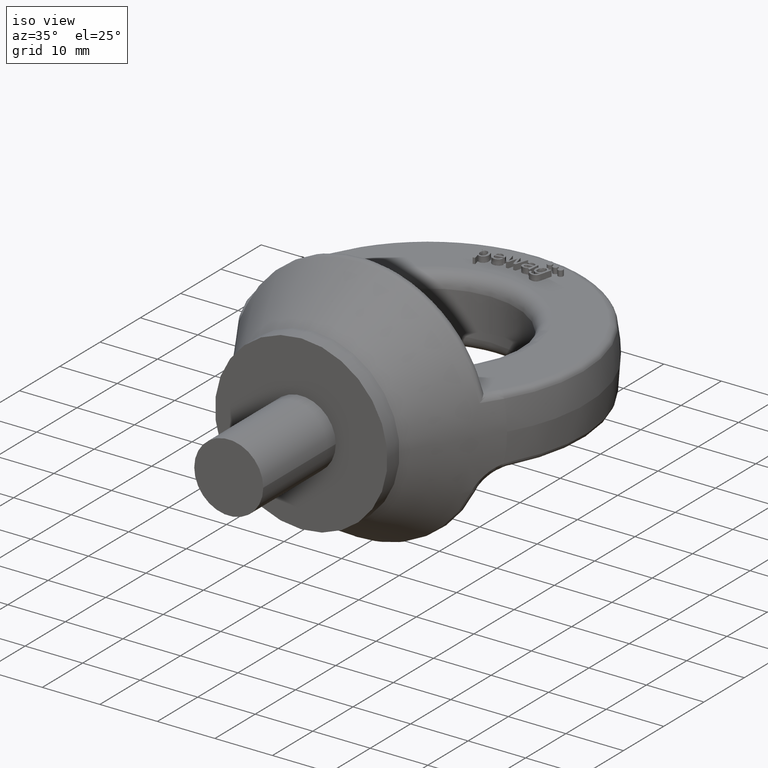
[diagram: clean part render]
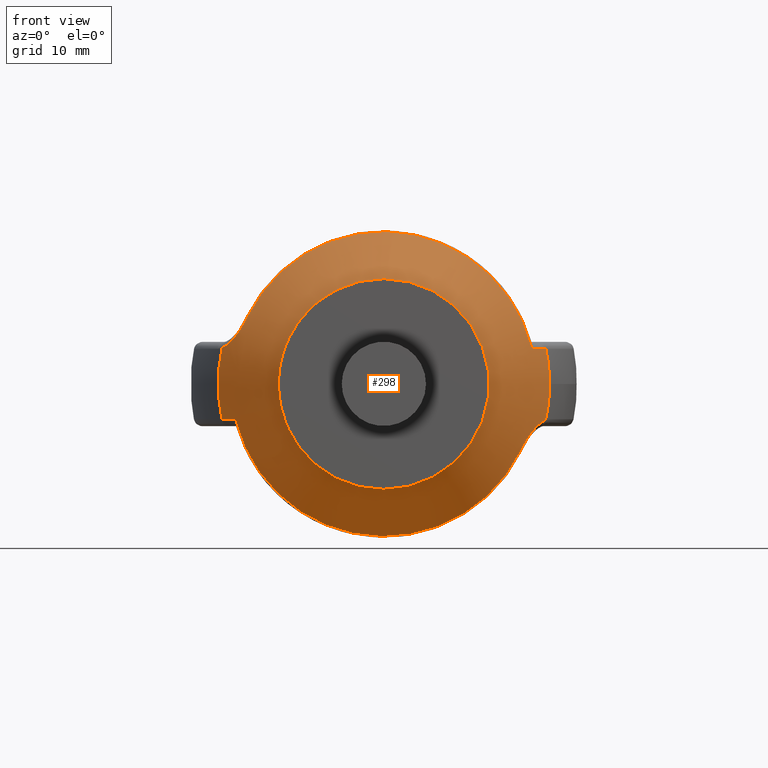
[diagram: tour spotlight — one face highlighted and labeled with its STEP entity id]
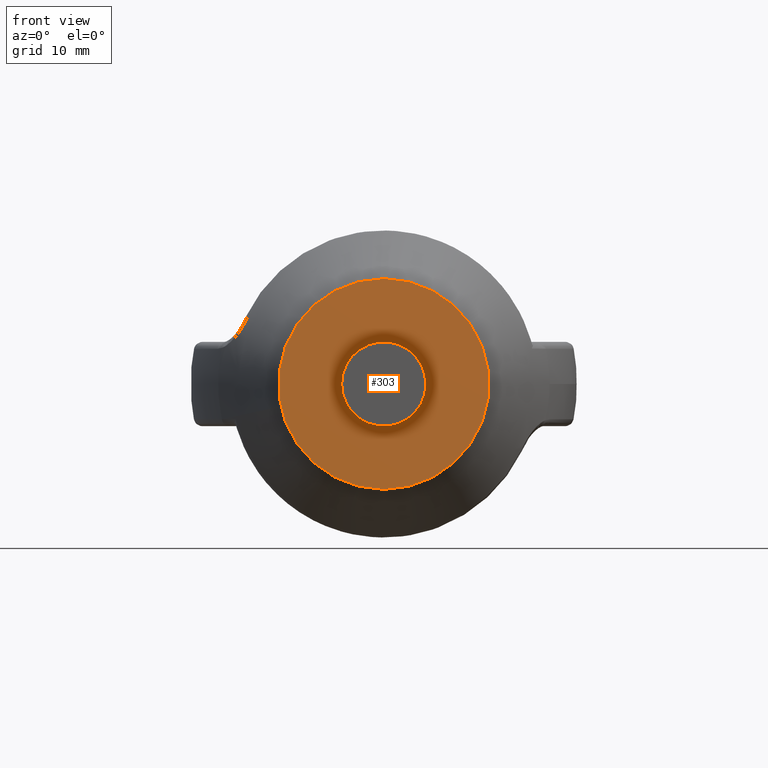
[diagram: tour spotlight — one face highlighted and labeled with its STEP entity id]
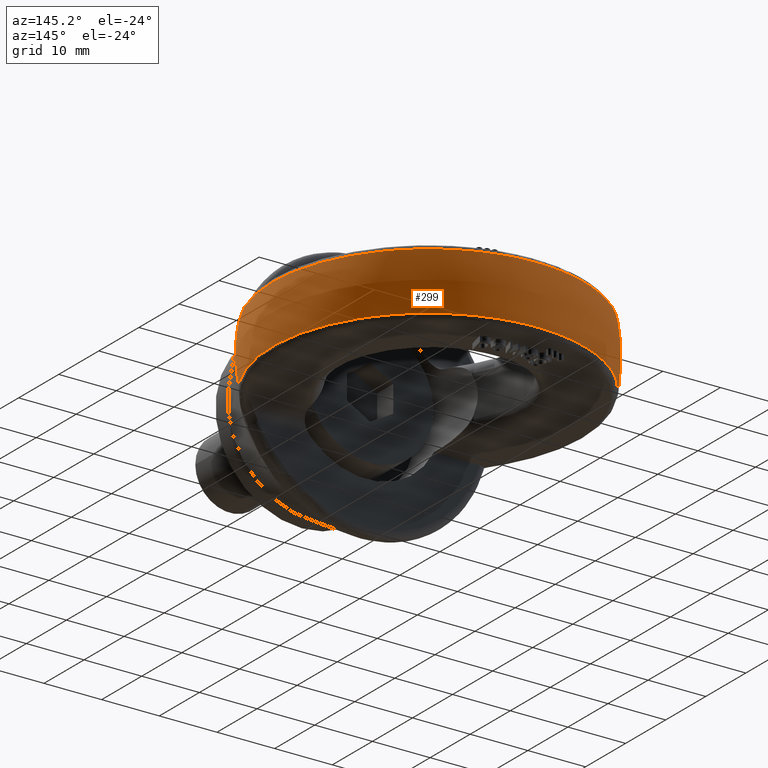
[diagram: tour spotlight — one face highlighted and labeled with its STEP entity id]
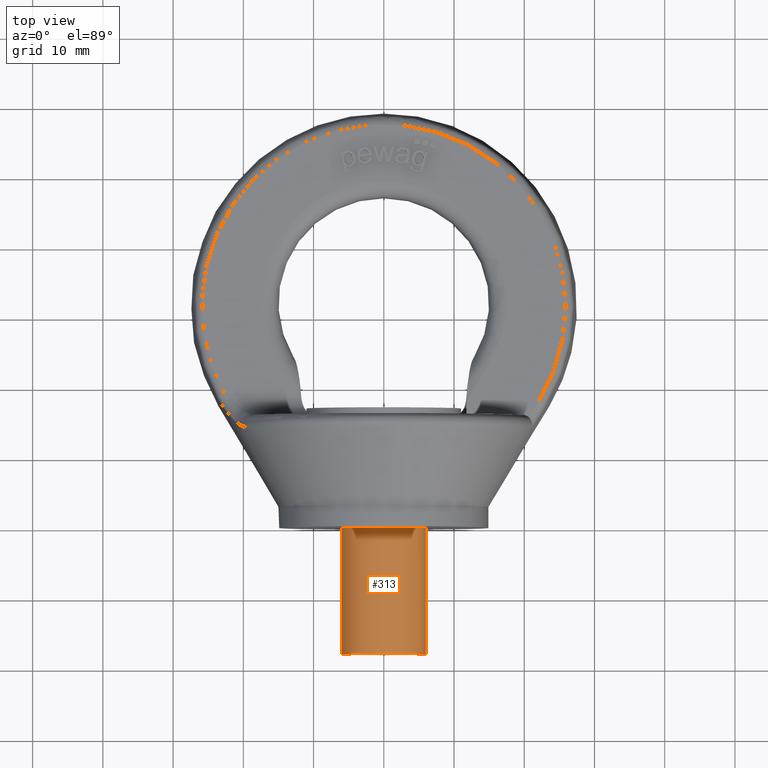
[diagram: tour spotlight — one face highlighted and labeled with its STEP entity id]
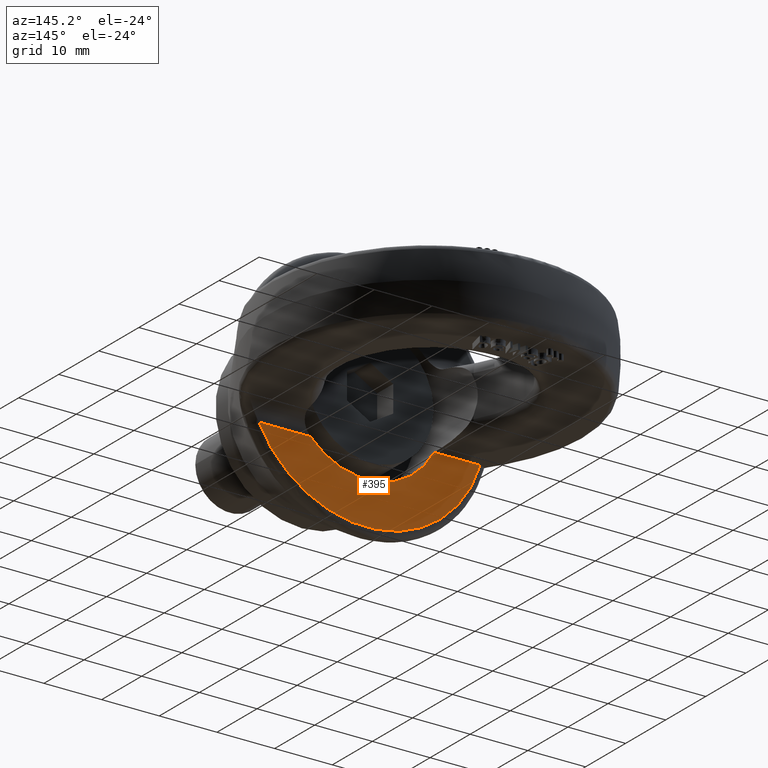
[diagram: tour spotlight — one face highlighted and labeled with its STEP entity id]
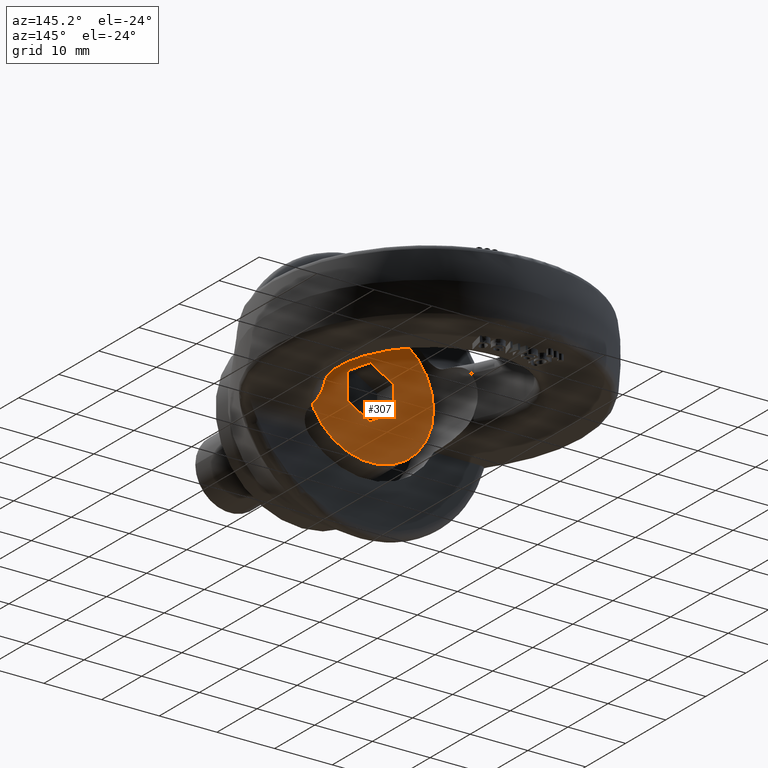
[diagram: tour spotlight — one face highlighted and labeled with its STEP entity id]
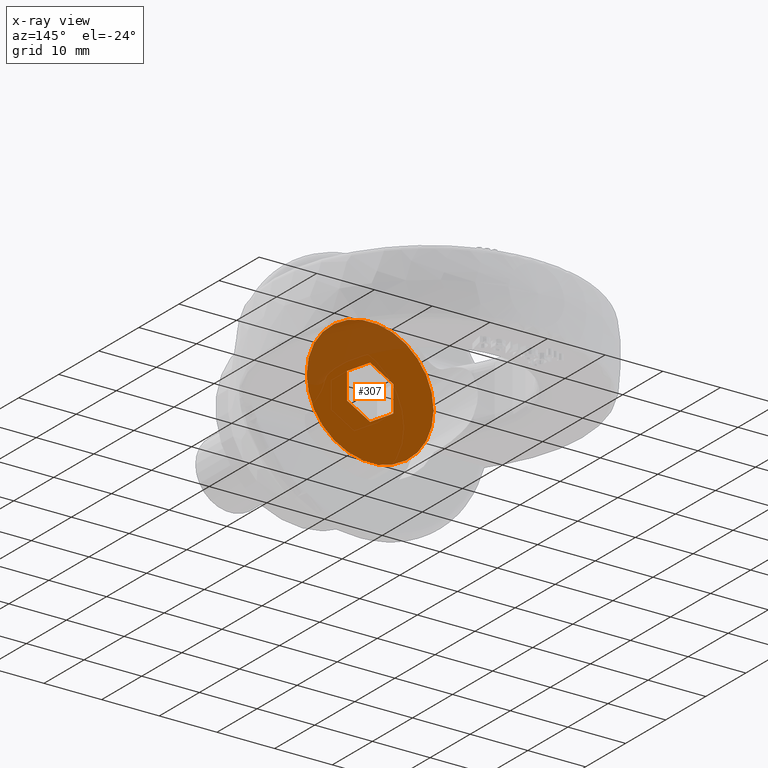
[diagram: x-ray of the same camera — body ghosted, this tour face saturated]
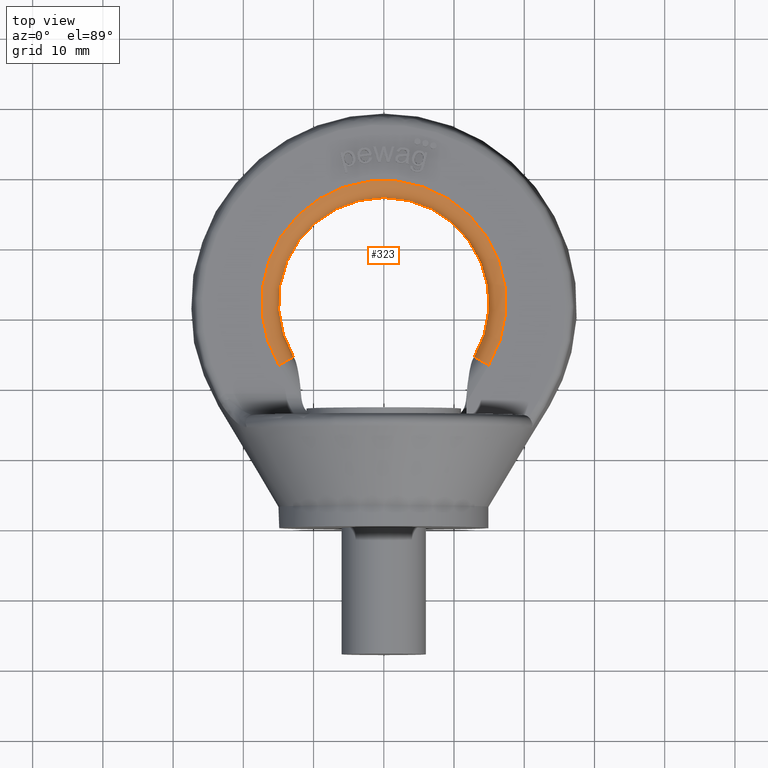
[diagram: tour spotlight — one face highlighted and labeled with its STEP entity id]
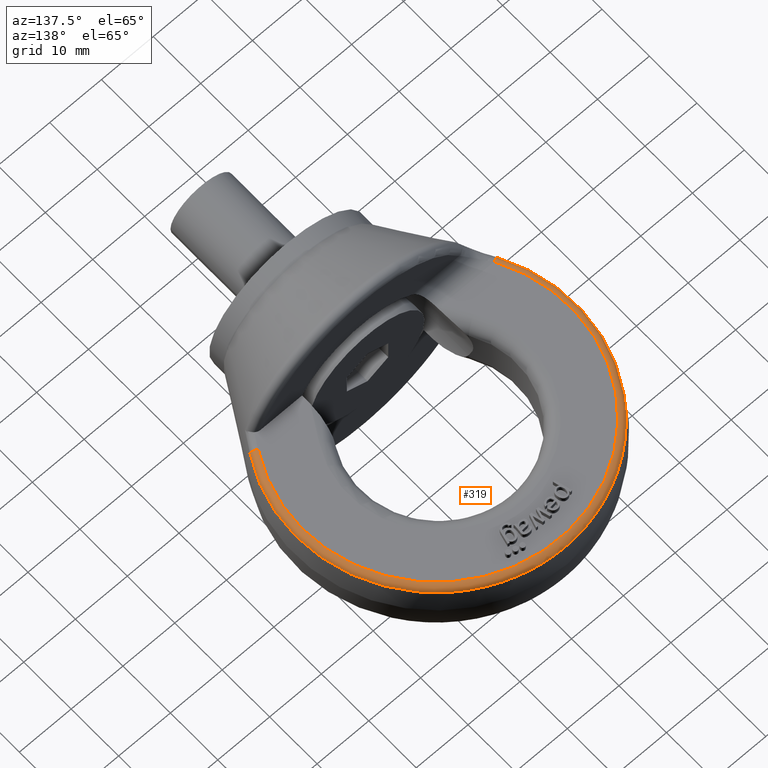
[diagram: tour spotlight — one face highlighted and labeled with its STEP entity id]
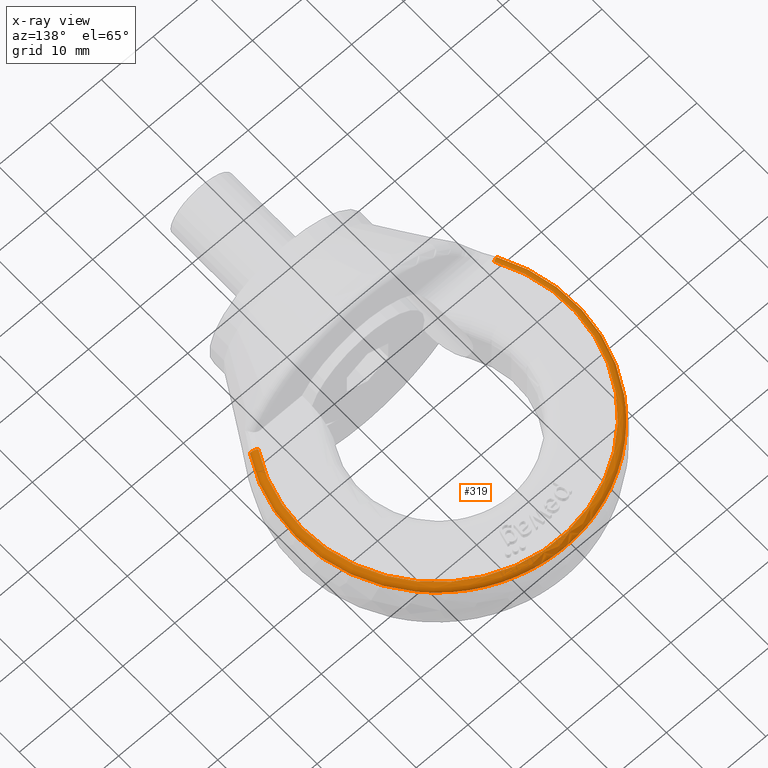
[diagram: x-ray of the same camera — body ghosted, this tour face saturated]
A machine part: a face-by-face anatomy tour. The part has 182 B-rep faces; the first image is the clean iso view, then the 8 largest visible faces are spotlighted one at a time (largest first), each with its STEP entity span.

Face 1 — front view, entity #298. In plain terms, the highlighted conical surface has half-angle 30.876 deg.
Definition (entity closure, byte-faithful):
#130=CONICAL_SURFACE('',#3210,13.2062141843784,30.8764104700905);
#298=ADVANCED_FACE('',(#628,#629),#130,.T.);
#577=CIRCLE('',#3205,23.6025973043248);
#578=CIRCLE('',#3206,21.6873378493402);
#579=CIRCLE('',#3207,23.6025973043248);
#580=CIRCLE('',#3208,21.6873378493402);
#581=CIRCLE('',#3209,15.0000000000001);
#628=FACE_BOUND('',#692,.T.);
#629=FACE_BOUND('',#693,.T.);
#692=EDGE_LOOP('',(#1406,#1407,#1408,#1409,#1410,#1411,#1412,#1413));
#693=EDGE_LOOP('',(#1414));
#1406=ORIENTED_EDGE('',*,*,#2572,.T.);
#1407=ORIENTED_EDGE('',*,*,#2573,.T.);
#1408=ORIENTED_EDGE('',*,*,#2574,.T.);
#1409=ORIENTED_EDGE('',*,*,#2575,.T.);
#1410=ORIENTED_EDGE('',*,*,#2576,.T.);
#1411=ORIENTED_EDGE('',*,*,#2577,.T.);
#1412=ORIENTED_EDGE('',*,*,#2578,.T.);
#1413=ORIENTED_EDGE('',*,*,#2579,.T.);
#1414=ORIENTED_EDGE('',*,*,#2580,.F.);
#2278=VERTEX_POINT('',#4269);
#2279=VERTEX_POINT('',#4270);
#2280=VERTEX_POINT('',#4278);
#2281=VERTEX_POINT('',#4280);
#2282=VERTEX_POINT('',#4285);
#2283=VERTEX_POINT('',#4287);
#2284=VERTEX_POINT('',#4295);
#2285=VERTEX_POINT('',#4297);
#2286=VERTEX_POINT('',#4303);
#2572=EDGE_CURVE('',#2278,#2279,#577,.T.);
#2573=EDGE_CURVE('',#2279,#2280,#2970,.T.);
#2574=EDGE_CURVE('',#2280,#2281,#578,.T.);
#2575=EDGE_CURVE('',#2281,#2282,#2971,.T.);
#2576=EDGE_CURVE('',#2282,#2283,#579,.T.);
#2577=EDGE_CURVE('',#2283,#2284,#2972,.T.);
#2578=EDGE_CURVE('',#2284,#2285,#580,.T.);
#2579=EDGE_CURVE('',#2285,#2278,#2973,.T.);
#2580=EDGE_CURVE('',#2286,#2286,#581,.T.);
#2970=B_SPLINE_CURVE_WITH_KNOTS('',3,(#4271,#4272,#4273,#4274,#4275,#4276,
#4277),.UNSPECIFIED.,.F.,.F.,(4,3,4),(0.,0.638294120188344,1.),
 .UNSPECIFIED.);
#2971=B_SPLINE_CURVE_WITH_KNOTS('',3,(#4281,#4282,#4283,#4284),
 .UNSPECIFIED.,.F.,.F.,(4,4),(0.,1.),.UNSPECIFIED.);
#2972=B_SPLINE_CURVE_WITH_KNOTS('',3,(#4288,#4289,#4290,#4291,#4292,#4293,
#4294),.UNSPECIFIED.,.F.,.F.,(4,3,4),(0.,0.638294120188344,1.),
 .UNSPECIFIED.);
#2973=B_SPLINE_CURVE_WITH_KNOTS('',3,(#4298,#4299,#4300,#4301),
 .UNSPECIFIED.,.F.,.F.,(4,4),(0.,1.),.UNSPECIFIED.);
#3205=AXIS2_PLACEMENT_3D('',#4268,#3422,#3423);
#3206=AXIS2_PLACEMENT_3D('',#4279,#3424,#3425);
#3207=AXIS2_PLACEMENT_3D('',#4286,#3426,#3427);
#3208=AXIS2_PLACEMENT_3D('',#4296,#3428,#3429);
#3209=AXIS2_PLACEMENT_3D('',#4302,#3430,#3431);
#3210=AXIS2_PLACEMENT_3D('',#4304,#3432,#3433);
#3422=DIRECTION('',(-2.1593813703848E-15,-1.,0.));
#3423=DIRECTION('',(1.,-2.20491429855343E-15,0.));
#3424=DIRECTION('',(-4.38613491528481E-16,-1.,-1.02763225525862E-30));
#3425=DIRECTION('',(-1.,3.99939238284515E-16,-2.34291072916505E-15));
#3426=DIRECTION('',(-2.1593813703848E-15,-1.,0.));
#3427=DIRECTION('',(1.,-2.20491429855343E-15,0.));
#3428=DIRECTION('',(4.38613491528481E-16,-1.,0.));
#3429=DIRECTION('',(1.,3.99939238284515E-16,0.));
#3430=DIRECTION('',(0.,-1.,0.));
#3431=DIRECTION('',(0.,0.,1.));
#3432=DIRECTION('',(2.1593813703848E-15,1.,0.));
#3433=DIRECTION('',(-1.,2.13457327670053E-15,0.));
#4268=CARTESIAN_POINT('',(-8.98576202357118E-14,17.3873319145569,0.));
#4269=CARTESIAN_POINT('',(-23.0351195089713,17.387331914557,5.14449887914585));
#4270=CARTESIAN_POINT('',(-23.0627865620805,17.3873319145569,-5.01901140684417));
#4271=CARTESIAN_POINT('',(-23.0627865620805,17.3873319145569,-5.01901140684417));
#4272=CARTESIAN_POINT('',(-22.6446015726163,16.7053451017831,-5.02296788881762));
#4273=CARTESIAN_POINT('',(-22.2259777586906,16.0236282794082,-5.02713655361826));
#4274=CARTESIAN_POINT('',(-21.8068296173222,15.3422358362941,-5.03155537863398));
#4275=CARTESIAN_POINT('',(-21.5693084320603,14.9561071034107,-5.03405942064589));
#4276=CARTESIAN_POINT('',(-21.3316184619003,14.5700826448269,-5.03664393549583));
#4277=CARTESIAN_POINT('',(-21.0937409154711,14.1841744835443,-5.03931713453303));
#4278=CARTESIAN_POINT('',(-21.0937409154711,14.1841744835443,-5.03931713453303));
#4279=CARTESIAN_POINT('',(9.67744587186501E-14,14.1841744835443,2.26733917641065E-28));
#4280=CARTESIAN_POINT('',(19.5208176159981,14.1841744835444,-9.44871962724931));
#4281=CARTESIAN_POINT('',(19.520817615998,14.1841744835443,-9.44871962724929));
#4282=CARTESIAN_POINT('',(20.5128956588533,14.1841744835443,-7.39911128882818));
#4283=CARTESIAN_POINT('',(21.7953895553173,15.5398626792843,-5.62746283426921));
#4284=CARTESIAN_POINT('',(23.0351195089713,17.387331914557,-5.14449887914579));
#4285=CARTESIAN_POINT('',(23.0351195089713,17.387331914557,-5.1444988791458));
#4286=CARTESIAN_POINT('',(-8.98576202357118E-14,17.3873319145569,0.));
#4287=CARTESIAN_POINT('',(23.0627865620805,17.3873319145569,5.01901140684411));
#4288=CARTESIAN_POINT('',(23.0627865620805,17.3873319145569,5.01901140684411));
#4289=CARTESIAN_POINT('',(22.6446015726163,16.7053451017831,5.02296788881757));
#4290=CARTESIAN_POINT('',(22.2259777586906,16.0236282794082,5.02713655361821));
#4291=CARTESIAN_POINT('',(21.8068296173222,15.3422358362941,5.03155537863393));
#4292=CARTESIAN_POINT('',(21.5693084320603,14.9561071034107,5.03405942064584));
#4293=CARTESIAN_POINT('',(21.3316184619003,14.5700826448269,5.03664393549578));
#4294=CARTESIAN_POINT('',(21.0937409154711,14.1841744835443,5.03931713453298));
#4295=CARTESIAN_POINT('',(21.0937409154711,14.1841744835443,5.03931713453298));
#4296=CARTESIAN_POINT('',(-9.67744587186501E-14,14.1841744835443,0.));
#4297=CARTESIAN_POINT('',(-19.520817615998,14.1841744835444,9.44871962724936));
#4298=CARTESIAN_POINT('',(-19.520817615998,14.1841744835443,9.44871962724934));
#4299=CARTESIAN_POINT('',(-20.5128956588533,14.1841744835443,7.39911128882823));
#4300=CARTESIAN_POINT('',(-21.7953895553173,15.5398626792843,5.62746283426926));
#4301=CARTESIAN_POINT('',(-23.0351195089713,17.387331914557,5.14449887914585));
#4302=CARTESIAN_POINT('',(-1.27403500852703E-13,3.,2.58454824747247E-14));
#4303=CARTESIAN_POINT('',(-1.27403500852703E-13,3.,15.0000000000001));
#4304=CARTESIAN_POINT('',(-1.27403500852703E-13,2.77555756156289E-14,0.));

Face 2 — front view, entity #303. In plain terms, the highlighted planar face has unit normal (0, 1, 0).
Definition (entity closure, byte-faithful):
#303=ADVANCED_FACE('',(#632,#633),#481,.F.);
#481=PLANE('',#3222);
#586=CIRCLE('',#3219,15.);
#587=CIRCLE('',#3221,6.);
#632=FACE_BOUND('',#699,.T.);
#633=FACE_BOUND('',#700,.T.);
#699=EDGE_LOOP('',(#1434));
#700=EDGE_LOOP('',(#1435));
#1434=ORIENTED_EDGE('',*,*,#2594,.T.);
#1435=ORIENTED_EDGE('',*,*,#2595,.T.);
#2296=VERTEX_POINT('',#4347);
#2297=VERTEX_POINT('',#4350);
#2594=EDGE_CURVE('',#2296,#2296,#586,.T.);
#2595=EDGE_CURVE('',#2297,#2297,#587,.T.);
#3219=AXIS2_PLACEMENT_3D('',#4346,#3454,#3455);
#3221=AXIS2_PLACEMENT_3D('',#4349,#3458,#3459);
#3222=AXIS2_PLACEMENT_3D('',#4351,#3460,#3461);
#3454=DIRECTION('',(0.,-1.,0.));
#3455=DIRECTION('',(0.,0.,-1.));
#3458=DIRECTION('',(0.,1.,0.));
#3459=DIRECTION('',(1.,0.,6.12323399573677E-17));
#3460=DIRECTION('',(0.,1.,0.));
#3461=DIRECTION('',(0.,0.,1.));
#4346=CARTESIAN_POINT('',(0.,0.,0.));
#4347=CARTESIAN_POINT('',(0.,0.,-15.));
#4349=CARTESIAN_POINT('',(0.,0.,0.));
#4350=CARTESIAN_POINT('',(6.,0.,3.67394039744206E-16));
#4351=CARTESIAN_POINT('',(-15.,-2.16840434497101E-16,0.));

Face 3 — auxiliary view, entity #299. In plain terms, the highlighted spherical surface has radius 27.5 mm.
Definition (entity closure, byte-faithful):
#129=SPHERICAL_SURFACE('',#3213,27.5);
#133=FACE_OUTER_BOUND('',#694,.T.);
#299=ADVANCED_FACE('',(#133),#129,.T.);
#577=CIRCLE('',#3205,23.6025973043248);
#579=CIRCLE('',#3207,23.6025973043248);
#582=CIRCLE('',#3211,27.0381124433265);
#583=CIRCLE('',#3212,27.0381124433265);
#694=EDGE_LOOP('',(#1415,#1416,#1417,#1418,#1419,#1420));
#1415=ORIENTED_EDGE('',*,*,#2572,.F.);
#1416=ORIENTED_EDGE('',*,*,#2581,.T.);
#1417=ORIENTED_EDGE('',*,*,#2582,.T.);
#1418=ORIENTED_EDGE('',*,*,#2576,.F.);
#1419=ORIENTED_EDGE('',*,*,#2583,.T.);
#1420=ORIENTED_EDGE('',*,*,#2584,.T.);
#2278=VERTEX_POINT('',#4269);
#2279=VERTEX_POINT('',#4270);
#2282=VERTEX_POINT('',#4285);
#2283=VERTEX_POINT('',#4287);
#2287=VERTEX_POINT('',#4309);
#2288=VERTEX_POINT('',#4315);
#2572=EDGE_CURVE('',#2278,#2279,#577,.T.);
#2576=EDGE_CURVE('',#2282,#2283,#579,.T.);
#2581=EDGE_CURVE('',#2278,#2287,#2974,.T.);
#2582=EDGE_CURVE('',#2287,#2283,#582,.T.);
#2583=EDGE_CURVE('',#2282,#2288,#2975,.T.);
#2584=EDGE_CURVE('',#2288,#2279,#583,.T.);
#2974=B_SPLINE_CURVE_WITH_KNOTS('',3,(#4305,#4306,#4307,#4308),
 .UNSPECIFIED.,.F.,.F.,(4,4),(0.,1.),.UNSPECIFIED.);
#2975=B_SPLINE_CURVE_WITH_KNOTS('',3,(#4311,#4312,#4313,#4314),
 .UNSPECIFIED.,.F.,.F.,(4,4),(0.,1.),.UNSPECIFIED.);
#3205=AXIS2_PLACEMENT_3D('',#4268,#3422,#3423);
#3207=AXIS2_PLACEMENT_3D('',#4286,#3426,#3427);
#3211=AXIS2_PLACEMENT_3D('',#4310,#3434,#3435);
#3212=AXIS2_PLACEMENT_3D('',#4316,#3436,#3437);
#3213=AXIS2_PLACEMENT_3D('',#4317,#3438,#3439);
#3422=DIRECTION('',(-2.1593813703848E-15,-1.,0.));
#3423=DIRECTION('',(1.,-2.20491429855343E-15,0.));
#3426=DIRECTION('',(-2.1593813703848E-15,-1.,0.));
#3427=DIRECTION('',(1.,-2.20491429855343E-15,0.));
#3434=DIRECTION('',(0.,-1.14557210677714E-16,-1.));
#3435=DIRECTION('',(0.,1.,-1.28316906708106E-16));
#3436=DIRECTION('',(-2.34291072916505E-15,-1.14557210677714E-16,1.));
#3437=DIRECTION('',(-2.84920768552035E-31,1.,1.28316906708106E-16));
#3438=DIRECTION('',(-2.09814903042743E-15,-1.,0.));
#3439=DIRECTION('',(1.,-2.27091073218782E-15,0.));
#4268=CARTESIAN_POINT('',(-8.98576202357118E-14,17.3873319145569,0.));
#4269=CARTESIAN_POINT('',(-23.0351195089713,17.387331914557,5.14449887914585));
#4270=CARTESIAN_POINT('',(-23.0627865620805,17.3873319145569,-5.01901140684417));
#4285=CARTESIAN_POINT('',(23.0351195089713,17.387331914557,-5.1444988791458));
#4286=CARTESIAN_POINT('',(-8.98576202357118E-14,17.3873319145569,0.));
#4287=CARTESIAN_POINT('',(23.0627865620805,17.3873319145569,5.01901140684411));
#4305=CARTESIAN_POINT('',(-23.0351195089713,17.387331914557,5.14449887914585));
#4306=CARTESIAN_POINT('',(-23.2574701833435,17.7205790611289,5.06307831770471));
#4307=CARTESIAN_POINT('',(-23.4714681164741,18.0717897042746,5.01901140684411));
#4308=CARTESIAN_POINT('',(-23.6690869940882,18.4296577946768,5.01901140684411));
#4309=CARTESIAN_POINT('',(-23.6690869940882,18.4296577946768,5.01901140684411));
#4310=CARTESIAN_POINT('',(0.,31.5,5.01901140684411));
#4311=CARTESIAN_POINT('',(23.0351195089713,17.387331914557,-5.1444988791458));
#4312=CARTESIAN_POINT('',(23.2574701833435,17.7205790611289,-5.06307831770465));
#4313=CARTESIAN_POINT('',(23.4714681164741,18.0717897042746,-5.01901140684406));
#4314=CARTESIAN_POINT('',(23.6690869940882,18.4296577946768,-5.01901140684406));
#4315=CARTESIAN_POINT('',(23.6690869940882,18.4296577946768,-5.01901140684406));
#4316=CARTESIAN_POINT('',(1.17590956748968E-14,31.5,-5.01901140684411));
#4317=CARTESIAN_POINT('',(0.,31.5,0.));

Face 4 — top view, entity #313. In plain terms, the highlighted cylindrical surface (bore or boss wall) has radius 6 mm, axis along (0, 1, 0).
Definition (entity closure, byte-faithful):
#116=CYLINDRICAL_SURFACE('',#3239,6.);
#313=ADVANCED_FACE('',(#642,#643),#116,.T.);
#587=CIRCLE('',#3221,6.);
#592=CIRCLE('',#3238,6.);
#642=FACE_BOUND('',#714,.T.);
#643=FACE_BOUND('',#715,.T.);
#714=EDGE_LOOP('',(#1488));
#715=EDGE_LOOP('',(#1489));
#1488=ORIENTED_EDGE('',*,*,#2628,.T.);
#1489=ORIENTED_EDGE('',*,*,#2595,.F.);
#2297=VERTEX_POINT('',#4350);
#2322=VERTEX_POINT('',#4462);
#2595=EDGE_CURVE('',#2297,#2297,#587,.T.);
#2628=EDGE_CURVE('',#2322,#2322,#592,.T.);
#3221=AXIS2_PLACEMENT_3D('',#4349,#3458,#3459);
#3238=AXIS2_PLACEMENT_3D('',#4461,#3510,#3511);
#3239=AXIS2_PLACEMENT_3D('',#4463,#3512,#3513);
#3458=DIRECTION('',(0.,1.,0.));
#3459=DIRECTION('',(1.,0.,6.12323399573677E-17));
#3510=DIRECTION('',(0.,1.,0.));
#3511=DIRECTION('',(1.,0.,6.12323399573677E-17));
#3512=DIRECTION('',(0.,1.,0.));
#3513=DIRECTION('',(0.,0.,1.));
#4349=CARTESIAN_POINT('',(0.,0.,0.));
#4350=CARTESIAN_POINT('',(6.,0.,3.67394039744206E-16));
#4461=CARTESIAN_POINT('',(0.,-18.,0.));
#4462=CARTESIAN_POINT('',(6.,-18.,3.67394039744206E-16));
#4463=CARTESIAN_POINT('',(0.,-18.,0.));

Face 5 — auxiliary view, entity #395. In plain terms, the highlighted planar face has unit normal (0, 1, 0).
Definition (entity closure, byte-faithful):
#214=FACE_OUTER_BOUND('',#812,.T.);
#395=ADVANCED_FACE('',(#214),#529,.T.);
#529=PLANE('',#3306);
#590=CIRCLE('',#3227,13.2017059221718);
#608=CIRCLE('',#3305,20.657406330606);
#812=EDGE_LOOP('',(#1876,#1877,#1878,#1879));
#1026=LINE('',#5573,#1248);
#1037=LINE('',#5710,#1259);
#1248=VECTOR('',#3738,1.);
#1259=VECTOR('',#3755,1.);
#1876=ORIENTED_EDGE('',*,*,#2814,.T.);
#1877=ORIENTED_EDGE('',*,*,#2815,.T.);
#1878=ORIENTED_EDGE('',*,*,#2792,.T.);
#1879=ORIENTED_EDGE('',*,*,#2603,.F.);
#2303=VERTEX_POINT('',#4387);
#2304=VERTEX_POINT('',#4389);
#2423=VERTEX_POINT('',#5574);
#2443=VERTEX_POINT('',#5711);
#2603=EDGE_CURVE('',#2303,#2304,#590,.T.);
#2792=EDGE_CURVE('',#2423,#2304,#1026,.T.);
#2814=EDGE_CURVE('',#2303,#2443,#1037,.T.);
#2815=EDGE_CURVE('',#2443,#2423,#608,.T.);
#3227=AXIS2_PLACEMENT_3D('',#4388,#3470,#3471);
#3305=AXIS2_PLACEMENT_3D('',#5712,#3756,#3757);
#3306=AXIS2_PLACEMENT_3D('',#5713,#3758,#3759);
#3470=DIRECTION('',(4.38613491528481E-16,1.,1.02763225525862E-30));
#3471=DIRECTION('',(1.,-5.25605853123392E-16,2.34291072916505E-15));
#3738=DIRECTION('',(1.,0.,2.34291072916505E-15));
#3755=DIRECTION('',(1.,-4.38613491528481E-16,2.34291072916505E-15));
#3756=DIRECTION('',(4.38613491528481E-16,1.,1.02763225525862E-30));
#3757=DIRECTION('',(1.,-5.03855164064806E-16,2.34291072916505E-15));
#3758=DIRECTION('',(4.38613491528481E-16,1.,1.02763225525862E-30));
#3759=DIRECTION('',(1.,-4.37150315946155E-16,2.34187669256869E-15));
#4387=CARTESIAN_POINT('',(9.65841805139463,16.,-8.99999999999999));
#4388=CARTESIAN_POINT('',(0.,16.,0.));
#4389=CARTESIAN_POINT('',(-11.7594659426143,16.,-6.00000000000003));
#5573=CARTESIAN_POINT('',(-55.,16.,-6.00000000000014));
#5574=CARTESIAN_POINT('',(-19.7668519574502,16.,-6.00000000000005));
#5710=CARTESIAN_POINT('',(7.91003245217855,16.,-8.99999999999999));
#5711=CARTESIAN_POINT('',(18.5937741275881,16.,-8.99999999999996));
#5712=CARTESIAN_POINT('',(2.01761351647714E-13,16.,4.72708835506271E-28));
#5713=CARTESIAN_POINT('',(7.9100324521786,16.,-30.25));

Face 6 — auxiliary view, entity #307. An x-ray twin of the same camera follows (body ghosted, this face saturated) — the face is partly hidden behind the body. In plain terms, the highlighted planar face has unit normal (0, 1, 0).
Definition (entity closure, byte-faithful):
#307=ADVANCED_FACE('',(#640,#641),#483,.T.);
#483=PLANE('',#3232);
#591=CIRCLE('',#3230,11.);
#640=FACE_BOUND('',#707,.T.);
#641=FACE_BOUND('',#708,.T.);
#707=EDGE_LOOP('',(#1459,#1460,#1461,#1462,#1463,#1464));
#708=EDGE_LOOP('',(#1465));
#937=LINE('',#4426,#1131);
#938=LINE('',#4429,#1132);
#939=LINE('',#4431,#1133);
#940=LINE('',#4433,#1134);
#941=LINE('',#4435,#1135);
#942=LINE('',#4437,#1136);
#1131=VECTOR('',#3481,1.);
#1132=VECTOR('',#3482,1.);
#1133=VECTOR('',#3483,1.);
#1134=VECTOR('',#3484,1.);
#1135=VECTOR('',#3485,1.);
#1136=VECTOR('',#3486,1.);
#1459=ORIENTED_EDGE('',*,*,#2611,.F.);
#1460=ORIENTED_EDGE('',*,*,#2612,.F.);
#1461=ORIENTED_EDGE('',*,*,#2613,.F.);
#1462=ORIENTED_EDGE('',*,*,#2614,.F.);
#1463=ORIENTED_EDGE('',*,*,#2615,.F.);
#1464=ORIENTED_EDGE('',*,*,#2616,.F.);
#1465=ORIENTED_EDGE('',*,*,#2610,.T.);
#2309=VERTEX_POINT('',#4424);
#2310=VERTEX_POINT('',#4427);
#2311=VERTEX_POINT('',#4428);
#2312=VERTEX_POINT('',#4430);
#2313=VERTEX_POINT('',#4432);
#2314=VERTEX_POINT('',#4434);
#2315=VERTEX_POINT('',#4436);
#2610=EDGE_CURVE('',#2309,#2309,#591,.T.);
#2611=EDGE_CURVE('',#2310,#2311,#937,.T.);
#2612=EDGE_CURVE('',#2312,#2310,#938,.T.);
#2613=EDGE_CURVE('',#2313,#2312,#939,.T.);
#2614=EDGE_CURVE('',#2314,#2313,#940,.T.);
#2615=EDGE_CURVE('',#2315,#2314,#941,.T.);
#2616=EDGE_CURVE('',#2311,#2315,#942,.T.);
#3230=AXIS2_PLACEMENT_3D('',#4423,#3477,#3478);
#3232=AXIS2_PLACEMENT_3D('',#4438,#3487,#3488);
#3477=DIRECTION('',(0.,1.,0.));
#3478=DIRECTION('',(1.,0.,6.12323399573677E-17));
#3481=DIRECTION('',(0.,0.,1.));
#3482=DIRECTION('',(-0.866025403784442,0.,0.499999999999995));
#3483=DIRECTION('',(-0.866025403784439,0.,-0.499999999999999));
#3484=DIRECTION('',(0.,0.,-1.));
#3485=DIRECTION('',(0.86602540378444,0.,-0.499999999999997));
#3486=DIRECTION('',(0.86602540378444,0.,0.499999999999997));
#3487=DIRECTION('',(0.,1.,0.));
#3488=DIRECTION('',(0.,0.,1.));
#4423=CARTESIAN_POINT('',(0.,17.,0.));
#4424=CARTESIAN_POINT('',(11.,17.,6.73555739531044E-16));
#4426=CARTESIAN_POINT('',(-4.,17.,2.3094010767585));
#4427=CARTESIAN_POINT('',(-3.99999999999999,17.,-2.30940107675851));
#4428=CARTESIAN_POINT('',(-4.,17.,2.3094010767585));
#4429=CARTESIAN_POINT('',(-3.99999999999999,17.,-2.30940107675851));
#4430=CARTESIAN_POINT('',(1.1688802859354E-14,17.,-4.61880215351698));
#4431=CARTESIAN_POINT('',(1.08214411213656E-14,17.,-4.61880215351698));
#4432=CARTESIAN_POINT('',(4.00000000000001,17.,-2.30940107675849));
#4433=CARTESIAN_POINT('',(4.,17.,-2.3094010767585));
#4434=CARTESIAN_POINT('',(4.,17.,2.3094010767585));
#4435=CARTESIAN_POINT('',(4.,17.,2.3094010767585));
#4436=CARTESIAN_POINT('',(-8.67361737988404E-16,17.,4.61880215351698));
#4437=CARTESIAN_POINT('',(0.,17.,4.61880215351698));
#4438=CARTESIAN_POINT('',(0.,17.,0.));

Face 7 — top view, entity #323. In plain terms, the highlighted toroidal blend (fillet) surface has major radius 17.4 mm and minor (blend) radius 2.4 mm.
Definition (entity closure, byte-faithful):
#108=TOROIDAL_SURFACE('',#3253,17.4,2.4);
#150=FACE_OUTER_BOUND('',#725,.T.);
#323=ADVANCED_FACE('',(#150),#108,.T.);
#573=CIRCLE('',#3197,17.4);
#584=CIRCLE('',#3214,15.);
#598=CIRCLE('',#3250,2.4);
#599=CIRCLE('',#3252,2.4);
#725=EDGE_LOOP('',(#1526,#1527,#1528,#1529));
#1526=ORIENTED_EDGE('',*,*,#2638,.F.);
#1527=ORIENTED_EDGE('',*,*,#2586,.F.);
#1528=ORIENTED_EDGE('',*,*,#2639,.T.);
#1529=ORIENTED_EDGE('',*,*,#2542,.F.);
#2249=VERTEX_POINT('',#4114);
#2250=VERTEX_POINT('',#4115);
#2274=VERTEX_POINT('',#4257);
#2290=VERTEX_POINT('',#4320);
#2542=EDGE_CURVE('',#2249,#2250,#573,.T.);
#2586=EDGE_CURVE('',#2290,#2274,#584,.T.);
#2638=EDGE_CURVE('',#2274,#2249,#598,.T.);
#2639=EDGE_CURVE('',#2290,#2250,#599,.T.);
#3197=AXIS2_PLACEMENT_3D('',#4113,#3391,#3392);
#3214=AXIS2_PLACEMENT_3D('',#4321,#3441,#3442);
#3250=AXIS2_PLACEMENT_3D('',#4556,#3534,#3535);
#3252=AXIS2_PLACEMENT_3D('',#4558,#3538,#3539);
#3253=AXIS2_PLACEMENT_3D('',#4559,#3540,#3541);
#3391=DIRECTION('',(0.,-1.14557210677714E-16,-1.));
#3392=DIRECTION('',(0.,1.,-9.969675149292E-17));
#3441=DIRECTION('',(0.,1.14557210677714E-16,1.));
#3442=DIRECTION('',(0.,1.,-1.15648231731787E-16));
#3534=DIRECTION('',(0.51318793037975,-0.858276265611807,0.));
#3535=DIRECTION('',(-0.858276265611806,-0.51318793037975,0.));
#3538=DIRECTION('',(0.51318793037975,0.858276265611807,0.));
#3539=DIRECTION('',(0.858276265611807,-0.51318793037975,0.));
#3540=DIRECTION('',(0.,-1.14557210677714E-16,-1.));
#3541=DIRECTION('',(0.,1.,-1.09515370958132E-16));
#4113=CARTESIAN_POINT('',(0.,32.,6.));
#4114=CARTESIAN_POINT('',(-14.9340070216455,23.0705300113923,6.00000000000001));
#4115=CARTESIAN_POINT('',(14.9340070216454,23.0705300113923,6.00000000000001));
#4257=CARTESIAN_POINT('',(-12.8741439841771,24.3021810443038,3.60000000000001));
#4320=CARTESIAN_POINT('',(12.8741439841771,24.3021810443037,3.6));
#4321=CARTESIAN_POINT('',(0.,32.,3.6));
#4556=CARTESIAN_POINT('',(-14.9340070216455,23.0705300113923,3.60000000000001));
#4558=CARTESIAN_POINT('',(14.9340070216454,23.0705300113923,3.60000000000001));
#4559=CARTESIAN_POINT('',(0.,32.,3.6));

Face 8 — auxiliary view, entity #319. An x-ray twin of the same camera follows (body ghosted, this face saturated) — the face is partly hidden behind the body. In plain terms, the highlighted toroidal blend (fillet) surface has major radius 25.8583 mm and minor (blend) radius 1.2 mm.
Definition (entity closure, byte-faithful):
#107=TOROIDAL_SURFACE('',#3248,25.8582675367086,1.2);
#146=FACE_OUTER_BOUND('',#721,.T.);
#319=ADVANCED_FACE('',(#146),#107,.T.);
#574=CIRCLE('',#3198,25.8582675367086);
#582=CIRCLE('',#3211,27.0381124433265);
#594=CIRCLE('',#3245,1.2);
#596=CIRCLE('',#3247,1.2);
#721=EDGE_LOOP('',(#1510,#1511,#1512,#1513));
#1510=ORIENTED_EDGE('',*,*,#2634,.F.);
#1511=ORIENTED_EDGE('',*,*,#2582,.F.);
#1512=ORIENTED_EDGE('',*,*,#2636,.F.);
#1513=ORIENTED_EDGE('',*,*,#2548,.F.);
#2255=VERTEX_POINT('',#4140);
#2256=VERTEX_POINT('',#4142);
#2283=VERTEX_POINT('',#4287);
#2287=VERTEX_POINT('',#4309);
#2548=EDGE_CURVE('',#2255,#2256,#574,.T.);
#2582=EDGE_CURVE('',#2287,#2283,#582,.T.);
#2634=EDGE_CURVE('',#2283,#2255,#594,.T.);
#2636=EDGE_CURVE('',#2256,#2287,#596,.T.);
#3198=AXIS2_PLACEMENT_3D('',#4141,#3396,#3397);
#3211=AXIS2_PLACEMENT_3D('',#4310,#3434,#3435);
#3245=AXIS2_PLACEMENT_3D('',#4497,#3524,#3525);
#3247=AXIS2_PLACEMENT_3D('',#4529,#3528,#3529);
#3248=AXIS2_PLACEMENT_3D('',#4530,#3530,#3531);
#3396=DIRECTION('',(0.,1.14557210677714E-16,1.));
#3397=DIRECTION('',(0.,1.,-1.00628752884209E-16));
#3434=DIRECTION('',(0.,-1.14557210677714E-16,-1.));
#3435=DIRECTION('',(0.,1.,-1.28316906708106E-16));
#3524=DIRECTION('',(-0.521954634038309,-0.852973246946195,0.));
#3525=DIRECTION('',(-0.852973246946194,0.521954634038309,0.));
#3528=DIRECTION('',(0.483404388258223,-0.875397165526993,0.));
#3529=DIRECTION('',(0.875397165526993,0.483404388258223,0.));
#3530=DIRECTION('',(0.,-1.14557210677714E-16,-1.));
#3531=DIRECTION('',(0.,1.,-1.28221326337571E-16));
#4140=CARTESIAN_POINT('',(22.0564104211898,18.0031574310126,6.00000000000001));
#4141=CARTESIAN_POINT('',(0.,31.5,6.));
#4142=CARTESIAN_POINT('',(-22.6362541070734,19.,6.00000000000001));
#4287=CARTESIAN_POINT('',(23.0627865620805,17.3873319145569,5.01901140684411));
#4309=CARTESIAN_POINT('',(-23.6690869940882,18.4296577946768,5.01901140684411));
#4310=CARTESIAN_POINT('',(0.,31.5,5.01901140684411));
#4497=CARTESIAN_POINT('',(22.0564104211898,18.0031574310126,4.80000000000001));
#4529=CARTESIAN_POINT('',(-22.6362541070734,19.,4.80000000000001));
#4530=CARTESIAN_POINT('',(0.,31.5,4.80000000000001));